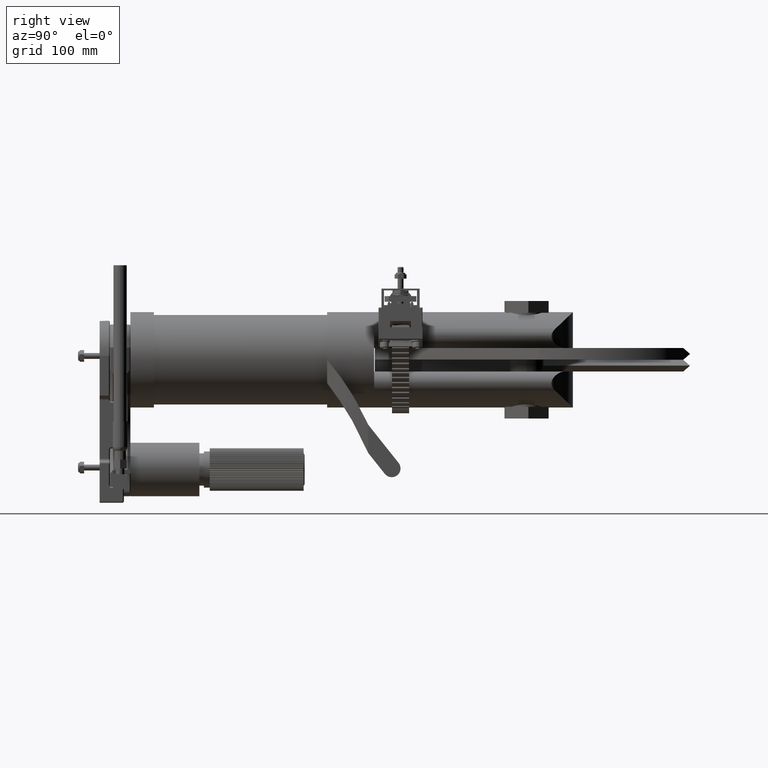
[diagram: clean part render]
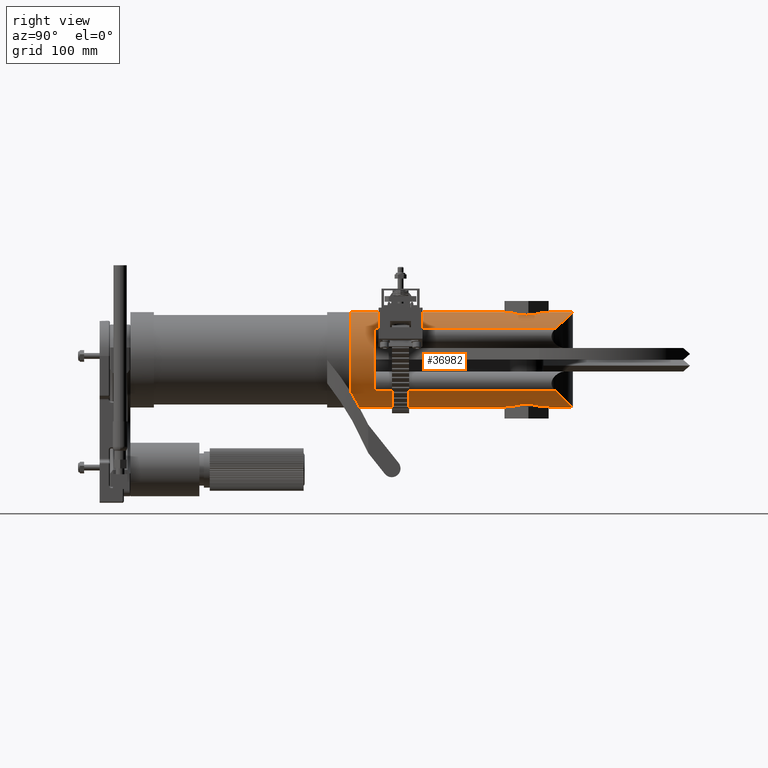
[diagram: same view with one face highlighted and labeled with its STEP entity id]
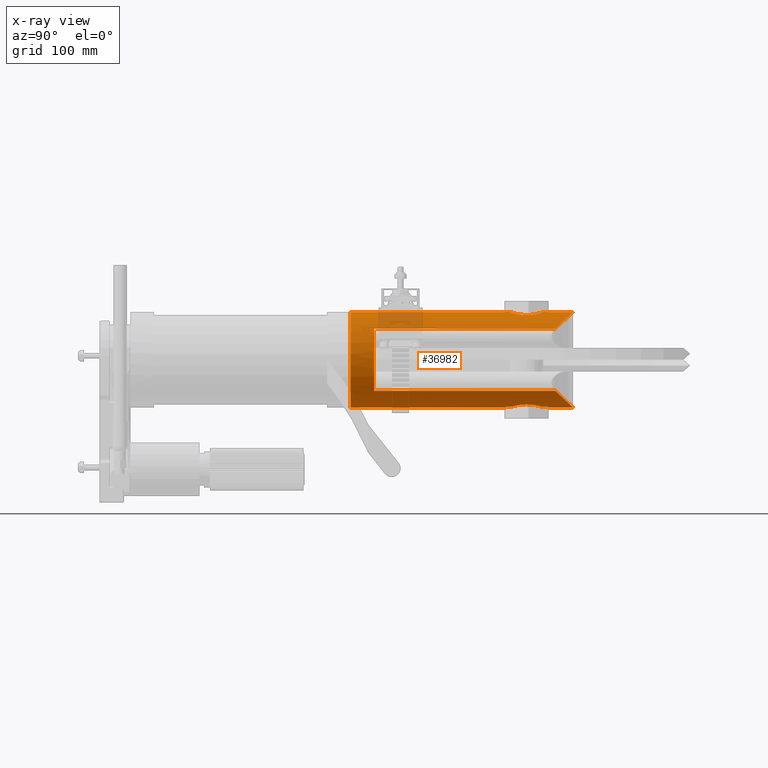
[diagram: x-ray of the same camera — body ghosted, the highlighted face saturated]
A machine part, right view. The second image highlights one B-rep face of the part: STEP entity #36982.
The next image is the same camera in x-ray: the body ghosted, the highlighted face saturated — about 8% of this face is hidden behind the body in this view.
In plain terms, the highlighted cylindrical surface (partial cylindrical patch) has radius 51.5938 mm, axis along (-0, -1, 0).
Its self-contained STEP definition (entity closure, byte-faithful):
#8277 =( BOUNDED_CURVE ( )  B_SPLINE_CURVE ( 3, ( #22376, #25103, #25104, #25105 ),
 .UNSPECIFIED., .F., .F. ) 
 B_SPLINE_CURVE_WITH_KNOTS ( ( 4, 4 ),
 ( 4.536751707814687500, 4.712388980384689700 ),
 .UNSPECIFIED. ) 
 CURVE ( )  GEOMETRIC_REPRESENTATION_ITEM ( )  RATIONAL_B_SPLINE_CURVE ( ( 1.000000000000000000, 0.9974309474124993800, 0.9974309474124993800, 1.000000000000000000 ) ) 
 REPRESENTATION_ITEM ( '' )  );
#8280 =( BOUNDED_CURVE ( )  B_SPLINE_CURVE ( 3, ( #22404, #25107, #25108, #25109 ),
 .UNSPECIFIED., .F., .T. ) 
 B_SPLINE_CURVE_WITH_KNOTS ( ( 4, 4 ),
 ( 1.570796326794896800, 1.746433599364898100 ),
 .UNSPECIFIED. ) 
 CURVE ( )  GEOMETRIC_REPRESENTATION_ITEM ( )  RATIONAL_B_SPLINE_CURVE ( ( 1.000000000000000000, 0.9974309474124993800, 0.9974309474124993800, 1.000000000000000000 ) ) 
 REPRESENTATION_ITEM ( '' )  );
#9951 = FACE_OUTER_BOUND ( 'NONE', #59903, .T. ) ;
#9960 = CYLINDRICAL_SURFACE ( 'NONE', #14162, 2.031250000000000000 ) ;
#14162 = AXIS2_PLACEMENT_3D ( 'NONE', #19466, #19465, #19458 ) ;
#14646 = AXIS2_PLACEMENT_3D ( 'NONE', #22350, #22373, #22374 ) ;
#14655 = AXIS2_PLACEMENT_3D ( 'NONE', #22322, #22348, #22349 ) ;
#15695 = B_SPLINE_CURVE_WITH_KNOTS ( 'NONE', 3,
 ( #22293, #22323, #22324, #22325, #22326, #22327, #22328, #22329, #22330, #22331, #22332, #22333, #22334, #22335, #22336, #22337, #22338, #22339, #22340, #22341, #22342, #22343, #22344, #22345 ),
 .UNSPECIFIED., .F., .F.,
 ( 4, 2, 2, 2, 2, 2, 2, 2, 2, 2, 2, 4 ),
 ( -0.04882047578979202600, -0.04271791631606803400, -0.03661535684234403600, -0.03051279736862004500, -0.02746151763175805000, -0.02441023789489605100, -0.01830767842117206000, -0.01525639868431003000, -0.01220511894744800300, -0.006102559473723914700, -0.003051279736861894900, 1.387778780781445700E-016 ),
 .UNSPECIFIED. ) ;
#15696 = B_SPLINE_CURVE_WITH_KNOTS ( 'NONE', 3,
 ( #22347, #22351, #22352, #22353, #22354, #22355, #22356, #22357, #22358, #22359, #22360, #22361, #22362, #22363, #22364, #22365, #22366, #22367, #22368, #22369, #22370, #22371 ),
 .UNSPECIFIED., .F., .F.,
 ( 4, 2, 2, 2, 2, 2, 2, 2, 2, 2, 4 ),
 ( 0.08930898898196625000, 0.09544698160097724000, 0.1015849742199882400, 0.1046539705294937700, 0.1077229668389992900, 0.1138609594580103100, 0.1169299557675158000, 0.1199989520770212800, 0.1261369446960322300, 0.1322749373150432000, 0.1384129299340541600 ),
 .UNSPECIFIED. ) ;
#15697 = B_SPLINE_CURVE_WITH_KNOTS ( 'NONE', 3,
 ( #22372, #22377, #22378, #22379, #22380, #22381, #22382, #22383, #22384, #22385, #22386, #22387, #22388, #22389, #22390, #22391, #22392, #22393, #22394, #22395, #22396, #22397, #22398, #22399, #22400, #22401, #22402, #22403 ),
 .UNSPECIFIED., .F., .F.,
 ( 4, 2, 2, 2, 2, 2, 2, 2, 2, 2, 2, 2, 2, 4 ),
 ( 0.02876765039164049300, 0.03056443622383342800, 0.03236122205602636600, 0.03595479372041223600, 0.03775157955260517000, 0.03954836538479810500, 0.04134515121699104000, 0.04314193704918397500, 0.04673550871356972600, 0.04853229454576259100, 0.05032908037795546400, 0.05392265204234114600, 0.05571943787453397000, 0.05751622370672679300 ),
 .UNSPECIFIED. ) ;
#15698 = B_SPLINE_CURVE_WITH_KNOTS ( 'NONE', 3,
 ( #22375, #22405, #22406, #22407, #22408, #22409, #22410, #22411, #22412, #25092, #25093, #25094, #25095, #25096, #25097, #25098, #25099, #25100 ),
 .UNSPECIFIED., .F., .F.,
 ( 4, 2, 2, 2, 2, 2, 2, 2, 4 ),
 ( 0.0000000000000000000, 0.004830445874811291200, 0.007245668812216858300, 0.009660891749622424500, 0.01086850321832527600, 0.01207611468702812900, 0.01449133762443383800, 0.01690656056183954500, 0.01932178349924525500 ),
 .UNSPECIFIED. ) ;
#15779 = B_SPLINE_CURVE_WITH_KNOTS ( 'NONE', 3,
 ( #27266, #27272, #27273, #27274, #27275, #27276, #27277, #27278, #27279, #27280, #27281, #27282, #27283, #27284, #27285, #27286, #27287, #27288, #27289, #27290, #27291, #27292, #27293, #27294 ),
 .UNSPECIFIED., .F., .F.,
 ( 4, 2, 2, 2, 2, 2, 2, 2, 2, 2, 2, 4 ),
 ( 1.718155261091193600E-017, 0.003595956298954937200, 0.005393934448432413100, 0.007191912597909890000, 0.01078786889686484500, 0.01258584704634236800, 0.01438382519581988700, 0.01797978149477504100, 0.02157573779373019400, 0.02337371594320777200, 0.02517169409268534700, 0.02876765039164049300 ),
 .UNSPECIFIED. ) ;
#15780 = B_SPLINE_CURVE_WITH_KNOTS ( 'NONE', 3,
 ( #27271, #27296, #27297, #27298, #27299, #27300, #27301, #27302, #27303, #27304, #27305, #27306, #27307, #27308, #27309, #27310, #27311, #27312, #27313, #27314, #27315, #27316 ),
 .UNSPECIFIED., .F., .F.,
 ( 4, 2, 2, 2, 2, 2, 2, 2, 2, 2, 4 ),
 ( 0.09568714846051695800, 0.09689511253324209500, 0.09810307660596723200, 0.1005190047514174000, 0.1017269688241424900, 0.1029349328968675700, 0.1053508610423178600, 0.1077667891877681600, 0.1089747532604934000, 0.1101827173332186200, 0.1150145736241195100 ),
 .UNSPECIFIED. ) ;
#19458 = DIRECTION ( 'NONE',  ( 0.0000000000000000000, 0.0000000000000000000, -1.000000000000000000 ) ) ;
#19465 = DIRECTION ( 'NONE',  ( -0.0000000000000000000, -1.000000000000000000, -0.0000000000000000000 ) ) ;
#19466 = CARTESIAN_POINT ( 'NONE',  ( 0.0000000000000000000, 10.25000000000000000, -2.156250000000000000 ) ) ;
#22257 = CARTESIAN_POINT ( 'NONE',  ( 0.0000000000000000000, 10.25000000000000000, -4.187500000000000000 ) ) ;
#22258 = DIRECTION ( 'NONE',  ( -0.0000000000000000000, -1.000000000000000000, -0.0000000000000000000 ) ) ;
#22288 = CARTESIAN_POINT ( 'NONE',  ( 0.0000000000000000000, 10.25000000000000000, -4.187500000000000000 ) ) ;
#22289 = DIRECTION ( 'NONE',  ( -0.0000000000000000000, -1.000000000000000000, -0.0000000000000000000 ) ) ;
#22293 = CARTESIAN_POINT ( 'NONE',  ( -1.538276014659651200, 18.97065110300615100, -0.8297193877551031200 ) ) ;
#22319 = CARTESIAN_POINT ( 'NONE',  ( -1.538276014659649900, 10.25000000000000000, -3.482780612244898300 ) ) ;
#22320 = DIRECTION ( 'NONE',  ( 0.0000000000000000000, 1.000000000000000000, 0.0000000000000000000 ) ) ;
#22321 = CARTESIAN_POINT ( 'NONE',  ( -1.538276014659650800, 10.25000000000000000, -0.8297193877551025700 ) ) ;
#22322 = CARTESIAN_POINT ( 'NONE',  ( 0.0000000000000000000, 11.24999999999999800, -2.156250000000000000 ) ) ;
#22323 = CARTESIAN_POINT ( 'NONE',  ( -1.497444702048972100, 19.02177037504725700, -0.7823704398632898000 ) ) ;
#22324 = CARTESIAN_POINT ( 'NONE',  ( -1.453873390420041400, 19.07111395246621300, -0.7362540163602913100 ) ) ;
#22325 = CARTESIAN_POINT ( 'NONE',  ( -1.360859027833986900, 19.16620037447367500, -0.6468795566405485300 ) ) ;
#22326 = CARTESIAN_POINT ( 'NONE',  ( -1.311418919253014100, 19.21194350839218100, -0.6036184797552164300 ) ) ;
#22327 = CARTESIAN_POINT ( 'NONE',  ( -1.206030054655290500, 19.29957435763830600, -0.5204090154600821100 ) ) ;
#22328 = CARTESIAN_POINT ( 'NONE',  ( -1.150087230463019200, 19.34146471787116200, -0.4804566866200446500 ) ) ;
#22329 = CARTESIAN_POINT ( 'NONE',  ( -1.060533299230782100, 19.40103469959537100, -0.4234783734408503200 ) ) ;
#22330 = CARTESIAN_POINT ( 'NONE',  ( -1.029937827352214000, 19.42020810350105000, -0.4051098258035474300 ) ) ;
#22331 = CARTESIAN_POINT ( 'NONE',  ( -0.9674527544473575700, 19.45698878808968100, -0.3698292752523268900 ) ) ;
#22332 = CARTESIAN_POINT ( 'NONE',  ( -0.9355250803138655000, 19.47462165943938900, -0.3528927677386527500 ) ) ;
#22333 = CARTESIAN_POINT ( 'NONE',  ( -0.8375965815526544800, 19.52516036782106600, -0.3042996196567278000 ) ) ;
#22334 = CARTESIAN_POINT ( 'NONE',  ( -0.7694621773201306700, 19.55571962114525400, -0.2748473092282149900 ) ) ;
#22335 = CARTESIAN_POINT ( 'NONE',  ( -0.6624477864033225800, 19.59630421974068100, -0.2356817549337838800 ) ) ;
#22336 = CARTESIAN_POINT ( 'NONE',  ( -0.6259042274104563700, 19.60897457380625400, -0.2234445549141554900 ) ) ;
#22337 = CARTESIAN_POINT ( 'NONE',  ( -0.5513634494164100200, 19.63232976176508200, -0.2008750136888301500 ) ) ;
#22338 = CARTESIAN_POINT ( 'NONE',  ( -0.5137002262745568000, 19.64291360254486200, -0.1906403293109739100 ) ) ;
#22339 = CARTESIAN_POINT ( 'NONE',  ( -0.3995150183001299800, 19.67134221103090000, -0.1631380456493027000 ) ) ;
#22340 = CARTESIAN_POINT ( 'NONE',  ( -0.3218025351764976500, 19.68587841476081100, -0.1490590697408266700 ) ) ;
#22341 = CARTESIAN_POINT ( 'NONE',  ( -0.2026997216843171900, 19.70065527986695700, -0.1347435517678214300 ) ) ;
#22342 = CARTESIAN_POINT ( 'NONE',  ( -0.1625752530419638500, 19.70440628369774300, -0.1311086104383400500 ) ) ;
#22343 = CARTESIAN_POINT ( 'NONE',  ( -0.08143737475467563400, 19.70944419982858500, -0.1262262773281549700 ) ) ;
#22344 = CARTESIAN_POINT ( 'NONE',  ( -0.04074235854515347000, 19.71070933318639700, -0.1250000000000001700 ) ) ;
#22345 = CARTESIAN_POINT ( 'NONE',  ( 2.487563810768060700E-016, 19.71070933318639000, -0.1249999999999999000 ) ) ;
#22346 = DIRECTION ( 'NONE',  ( -0.0000000000000000000, -1.000000000000000000, -0.0000000000000000000 ) ) ;
#22347 = CARTESIAN_POINT ( 'NONE',  ( 0.0000000000000000000, 19.71070933318639000, -4.187500000000000000 ) ) ;
#22348 = DIRECTION ( 'NONE',  ( 0.0000000000000000000, 1.000000000000000000, 0.0000000000000000000 ) ) ;
#22349 = DIRECTION ( 'NONE',  ( 8.881784197001252300E-016, 0.0000000000000000000, -1.000000000000000000 ) ) ;
#22350 = CARTESIAN_POINT ( 'NONE',  ( 0.0000000000000000000, 10.25000000000000000, -2.156250000000000000 ) ) ;
#22351 = CARTESIAN_POINT ( 'NONE',  ( -0.08152241056359951800, 19.71070933318639700, -4.187500000000001800 ) ) ;
#22352 = CARTESIAN_POINT ( 'NONE',  ( -0.1617269734057844000, 19.70566842587297900, -4.182613142033256200 ) ) ;
#22353 = CARTESIAN_POINT ( 'NONE',  ( -0.3196863607864583500, 19.68620974024667400, -4.163761850038498300 ) ) ;
#22354 = CARTESIAN_POINT ( 'NONE',  ( -0.3974402451221549200, 19.67178841805321500, -4.149793875317686600 ) ) ;
#22355 = CARTESIAN_POINT ( 'NONE',  ( -0.5122836836487790800, 19.64330033643972900, -4.122233680541905100 ) ) ;
#22356 = CARTESIAN_POINT ( 'NONE',  ( -0.5503304269888842400, 19.63262711957173000, -4.111912491121815400 ) ) ;
#22357 = CARTESIAN_POINT ( 'NONE',  ( -0.6245491791895090300, 19.60942461535864800, -4.089490202567767500 ) ) ;
#22358 = CARTESIAN_POINT ( 'NONE',  ( -0.6608869769176549700, 19.59685955225032600, -4.077354464239386200 ) ) ;
#22359 = CARTESIAN_POINT ( 'NONE',  ( -0.7677305142193462400, 19.55644709721448700, -4.038354143015451900 ) ) ;
#22360 = CARTESIAN_POINT ( 'NONE',  ( -0.8360748700193427800, 19.52589351301930900, -4.008906097007224100 ) ) ;
#22361 = CARTESIAN_POINT ( 'NONE',  ( -0.9346533880204884700, 19.47509696554578100, -3.960063853104248500 ) ) ;
#22362 = CARTESIAN_POINT ( 'NONE',  ( -0.9669431231923825100, 19.45728078871760400, -3.942950973245809900 ) ) ;
#22363 = CARTESIAN_POINT ( 'NONE',  ( -1.029810455163829200, 19.42029098269135200, -3.907469517285550300 ) ) ;
#22364 = CARTESIAN_POINT ( 'NONE',  ( -1.060300092936520700, 19.40117756742125400, -3.889158584585590700 ) ) ;
#22365 = CARTESIAN_POINT ( 'NONE',  ( -1.149153347761415800, 19.34211015089804100, -3.832660061493077000 ) ) ;
#22366 = CARTESIAN_POINT ( 'NONE',  ( -1.204912320221722900, 19.30043695123991700, -3.792912601248467700 ) ) ;
#22367 = CARTESIAN_POINT ( 'NONE',  ( -1.310289015084239500, 19.21294841620007800, -3.709833234557153000 ) ) ;
#22368 = CARTESIAN_POINT ( 'NONE',  ( -1.359902457545063300, 19.16713108968999200, -3.666497885636348800 ) ) ;
#22369 = CARTESIAN_POINT ( 'NONE',  ( -1.453481502566407400, 19.07156105974587500, -3.576663634052935900 ) ) ;
#22370 = CARTESIAN_POINT ( 'NONE',  ( -1.497566853460609700, 19.02161744606107900, -3.529987910494444000 ) ) ;
#22371 = CARTESIAN_POINT ( 'NONE',  ( -1.538276014659649700, 18.97065110300615500, -3.482780612244898800 ) ) ;
#22372 = CARTESIAN_POINT ( 'NONE',  ( -0.7183672316015292700, 17.74195933318638700, -4.056230284913807400 ) ) ;
#22373 = DIRECTION ( 'NONE',  ( -0.0000000000000000000, -1.000000000000000000, -0.0000000000000000000 ) ) ;
#22374 = DIRECTION ( 'NONE',  ( 0.0000000000000000000, 0.0000000000000000000, -1.000000000000000000 ) ) ;
#22375 = CARTESIAN_POINT ( 'NONE',  ( -0.7183672316015292700, 17.74195933318638700, -0.2562697150861919500 ) ) ;
#22376 = CARTESIAN_POINT ( 'NONE',  ( -0.3549317716125175400, 16.86291926993516600, -0.1562500000000000800 ) ) ;
#22377 = CARTESIAN_POINT ( 'NONE',  ( -0.7183672316015293800, 17.71831907268666800, -4.056230284913807400 ) ) ;
#22378 = CARTESIAN_POINT ( 'NONE',  ( -0.7171946862238720600, 17.69449113415445800, -4.056674883937389200 ) ) ;
#22379 = CARTESIAN_POINT ( 'NONE',  ( -0.7124605717285440500, 17.64697837930967900, -4.058454744807568700 ) ) ;
#22380 = CARTESIAN_POINT ( 'NONE',  ( -0.7089336571212897500, 17.62355257311186900, -4.059776763880766000 ) ) ;
#22381 = CARTESIAN_POINT ( 'NONE',  ( -0.6950031551482858100, 17.55422404044622200, -4.064926298085384600 ) ) ;
#22382 = CARTESIAN_POINT ( 'NONE',  ( -0.6812829435444088800, 17.50926193866742200, -4.069938013334672500 ) ) ;
#22383 = CARTESIAN_POINT ( 'NONE',  ( -0.6539478460922334400, 17.44369023352037500, -4.079378103339104600 ) ) ;
#22384 = CARTESIAN_POINT ( 'NONE',  ( -0.6437940758207301200, 17.42238453192699800, -4.082812142881397000 ) ) ;
#22385 = CARTESIAN_POINT ( 'NONE',  ( -0.6216355377192278600, 17.38117113506126200, -4.090075680016208400 ) ) ;
#22386 = CARTESIAN_POINT ( 'NONE',  ( -0.6096064444560701500, 17.36120505758053100, -4.093913713732007400 ) ) ;
#22387 = CARTESIAN_POINT ( 'NONE',  ( -0.5836652228290629700, 17.32252072841280800, -4.101885010040677800 ) ) ;
#22388 = CARTESIAN_POINT ( 'NONE',  ( -0.5697531414350902600, 17.30380248383672600, -4.106018460993081700 ) ) ;
#22389 = CARTESIAN_POINT ( 'NONE',  ( -0.5400017251125375200, 17.26761957764964000, -4.114467002922293800 ) ) ;
#22390 = CARTESIAN_POINT ( 'NONE',  ( -0.5241397810906711600, 17.25015324883018400, -4.118785269661800400 ) ) ;
#22391 = CARTESIAN_POINT ( 'NONE',  ( -0.4746188196911956800, 17.20069647966267800, -4.131566700594642100 ) ) ;
#22392 = CARTESIAN_POINT ( 'NONE',  ( -0.4387458926702950700, 17.17122707208867600, -4.139944746214892400 ) ) ;
#22393 = CARTESIAN_POINT ( 'NONE',  ( -0.3805443091693986300, 17.13221926037985900, -4.151633209250215700 ) ) ;
#22394 = CARTESIAN_POINT ( 'NONE',  ( -0.3603094190412163300, 17.12003898145993800, -4.155399357369213400 ) ) ;
#22395 = CARTESIAN_POINT ( 'NONE',  ( -0.3187377959947160800, 17.09774351628509900, -4.162447210626112300 ) ) ;
#22396 = CARTESIAN_POINT ( 'NONE',  ( -0.2975370596392878400, 17.08768797446678900, -4.165708645767694000 ) ) ;
#22397 = CARTESIAN_POINT ( 'NONE',  ( -0.2327058994520001000, 17.06071724931162900, -4.174597760049675100 ) ) ;
#22398 = CARTESIAN_POINT ( 'NONE',  ( -0.1878584264595888300, 17.04696509593949100, -4.179333127481436700 ) ) ;
#22399 = CARTESIAN_POINT ( 'NONE',  ( -0.1179992898850668300, 17.03295177207344600, -4.184204048230533600 ) ) ;
#22400 = CARTESIAN_POINT ( 'NONE',  ( -0.09428568779913491800, 17.02941272126946300, -4.185447623505360100 ) ) ;
#22401 = CARTESIAN_POINT ( 'NONE',  ( -0.04714549183066531900, 17.02474962349327100, -4.187089749651263100 ) ) ;
#22402 = CARTESIAN_POINT ( 'NONE',  ( -0.02357362106851695200, 17.02359210158485700, -4.187500000000000900 ) ) ;
#22403 = CARTESIAN_POINT ( 'NONE',  ( -3.961038017548696400E-019, 17.02359210158485700, -4.187500000000000000 ) ) ;
#22404 = CARTESIAN_POINT ( 'NONE',  ( 2.487563810768061100E-016, 18.64764047767272700, -0.1249999999999999000 ) ) ;
#22405 = CARTESIAN_POINT ( 'NONE',  ( -0.7183672316015292700, 17.80630879087581800, -0.2562697150861923400 ) ) ;
#22406 = CARTESIAN_POINT ( 'NONE',  ( -0.7098760358352547200, 17.86907069713219100, -0.2529985209188791400 ) ) ;
#22407 = CARTESIAN_POINT ( 'NONE',  ( -0.6849070813881927800, 17.96095983710767600, -0.2439327521410784000 ) ) ;
#22408 = CARTESIAN_POINT ( 'NONE',  ( -0.6744361335400919100, 17.99132735813305600, -0.2401915178086403700 ) ) ;
#22409 = CARTESIAN_POINT ( 'NONE',  ( -0.6499554440983866800, 18.04954091712336300, -0.2317495125776573000 ) ) ;
#22410 = CARTESIAN_POINT ( 'NONE',  ( -0.6359046012376624600, 18.07760804764949800, -0.2270329754931579300 ) ) ;
#22411 = CARTESIAN_POINT ( 'NONE',  ( -0.6121558785524362500, 18.11820721727588100, -0.2194198965553893500 ) ) ;
#22412 = CARTESIAN_POINT ( 'NONE',  ( -0.6037926190451026200, 18.13148914315029000, -0.2167923287012313300 ) ) ;
#23882 = VECTOR ( 'NONE', #22346, 39.37007874015748100 ) ;
#23889 = LINE ( 'NONE', #22257, #23891 ) ;
#23891 = VECTOR ( 'NONE', #22258, 39.37007874015748100 ) ;
#23897 = LINE ( 'NONE', #22288, #23900 ) ;
#23900 = VECTOR ( 'NONE', #22289, 39.37007874015748100 ) ;
#23905 = VECTOR ( 'NONE', #25110, 39.37007874015748100 ) ;
#23910 = LINE ( 'NONE', #22319, #23912 ) ;
#23912 = VECTOR ( 'NONE', #22320, 39.37007874015748100 ) ;
#23914 = LINE ( 'NONE', #25106, #23905 ) ;
#23916 = LINE ( 'NONE', #22321, #23882 ) ;
#23921 = VECTOR ( 'NONE', #25115, 39.37007874015748100 ) ;
#23923 = CIRCLE ( 'NONE', #14655, 2.031250000000000000 ) ;
#23926 = CIRCLE ( 'NONE', #14646, 2.031250000000000000 ) ;
#23935 = LINE ( 'NONE', #25102, #23921 ) ;
#24941 = LINE ( 'NONE', #27375, #24944 ) ;
#24944 = VECTOR ( 'NONE', #27376, 39.37007874015748100 ) ;
#24945 = LINE ( 'NONE', #27410, #24948 ) ;
#24948 = VECTOR ( 'NONE', #27411, 39.37007874015748100 ) ;
#25092 = CARTESIAN_POINT ( 'NONE',  ( -0.5861598833950783000, 18.15754998606747300, -0.2113905766299572200 ) ) ;
#25093 = CARTESIAN_POINT ( 'NONE',  ( -0.5768590795918564500, 18.17036834996696400, -0.2086073317525872800 ) ) ;
#25094 = CARTESIAN_POINT ( 'NONE',  ( -0.5477944130213302500, 18.20775926471485600, -0.2001556676365332500 ) ) ;
#25095 = CARTESIAN_POINT ( 'NONE',  ( -0.5269882554678770900, 18.23115123378091000, -0.1944178477924327900 ) ) ;
#25096 = CARTESIAN_POINT ( 'NONE',  ( -0.4825809573290261200, 18.27500807076275900, -0.1830248140519155600 ) ) ;
#25097 = CARTESIAN_POINT ( 'NONE',  ( -0.4589797244678562300, 18.29547258237494800, -0.1773686080472716700 ) ) ;
#25098 = CARTESIAN_POINT ( 'NONE',  ( -0.4088843280510307000, 18.33344298534773000, -0.1664139371135083800 ) ) ;
#25099 = CARTESIAN_POINT ( 'NONE',  ( -0.3822703695896018100, 18.35098282943164300, -0.1611016685067046000 ) ) ;
#25100 = CARTESIAN_POINT ( 'NONE',  ( -0.3549317716125175400, 18.36651911170150000, -0.1562500000000001400 ) ) ;
#25102 = CARTESIAN_POINT ( 'NONE',  ( -0.3549317716125175400, 10.25000000000000000, -0.1562500000000000000 ) ) ;
#25103 = CARTESIAN_POINT ( 'NONE',  ( -0.2376895008124179100, 16.85411909730935400, -0.1354434965585229500 ) ) ;
#25104 = CARTESIAN_POINT ( 'NONE',  ( -0.1190741812813531600, 16.84521586402313500, -0.1249999999999999200 ) ) ;
#25105 = CARTESIAN_POINT ( 'NONE',  ( 2.487563810768061100E-016, 16.83627818870004600, -0.1249999999999999000 ) ) ;
#25106 = CARTESIAN_POINT ( 'NONE',  ( -0.3549317716125175400, 10.25000000000000000, -0.1562500000000000000 ) ) ;
#25107 = CARTESIAN_POINT ( 'NONE',  ( -0.1190741812813525100, 18.65657815299582000, -0.1249999999999999200 ) ) ;
#25108 = CARTESIAN_POINT ( 'NONE',  ( -0.2376895008124166900, 18.66548138628203500, -0.1354434965585228900 ) ) ;
#25109 = CARTESIAN_POINT ( 'NONE',  ( -0.3549317716125174900, 18.67428155890785000, -0.1562500000000000800 ) ) ;
#25110 = DIRECTION ( 'NONE',  ( 0.0000000000000000000, 1.000000000000000000, 0.0000000000000000000 ) ) ;
#25115 = DIRECTION ( 'NONE',  ( 0.0000000000000000000, 1.000000000000000000, 0.0000000000000000000 ) ) ;
#27266 = CARTESIAN_POINT ( 'NONE',  ( -6.968576320606263500E-016, 18.46032656478792000, -4.187500000000000000 ) ) ;
#27271 = CARTESIAN_POINT ( 'NONE',  ( -0.3549317716125175400, 17.11739955467127700, -0.1562500000000001400 ) ) ;
#27272 = CARTESIAN_POINT ( 'NONE',  ( -0.04789797130060635000, 18.46032656478792300, -4.187500000000001800 ) ) ;
#27273 = CARTESIAN_POINT ( 'NONE',  ( -0.09492132980028966700, 18.45558466414027900, -4.185809284629312900 ) ) ;
#27274 = CARTESIAN_POINT ( 'NONE',  ( -0.1642147761047550400, 18.44170207866183000, -4.180983603799000500 ) ) ;
#27275 = CARTESIAN_POINT ( 'NONE',  ( -0.1871041913648734100, 18.43593754198722900, -4.178992799624799300 ) ) ;
#27276 = CARTESIAN_POINT ( 'NONE',  ( -0.2324607573025852500, 18.42208853343516100, -4.174283302047957300 ) ) ;
#27277 = CARTESIAN_POINT ( 'NONE',  ( -0.2548891448000443800, 18.41399859063512100, -4.171563537902027700 ) ) ;
#27278 = CARTESIAN_POINT ( 'NONE',  ( -0.3200422171687703500, 18.38681551844765500, -4.162607849557765000 ) ) ;
#27279 = CARTESIAN_POINT ( 'NONE',  ( -0.3611772022876524300, 18.36469326043126700, -4.155525587271367400 ) ) ;
#27280 = CARTESIAN_POINT ( 'NONE',  ( -0.4195456707793046600, 18.32555308624413100, -4.143799197713921200 ) ) ;
#27281 = CARTESIAN_POINT ( 'NONE',  ( -0.4385283080017390300, 18.31142660798947800, -4.139684855993172300 ) ) ;
#27282 = CARTESIAN_POINT ( 'NONE',  ( -0.4746913933689782500, 18.28165196334910500, -4.131342146191904000 ) ) ;
#27283 = CARTESIAN_POINT ( 'NONE',  ( -0.4919271803387554900, 18.26598129519585400, -4.127105590468331400 ) ) ;
#27284 = CARTESIAN_POINT ( 'NONE',  ( -0.5411799603356897100, 18.21665426881523300, -4.114374357638274300 ) ) ;
#27285 = CARTESIAN_POINT ( 'NONE',  ( -0.5707836270097999000, 18.18068683798171400, -4.105848853906890000 ) ) ;
#27286 = CARTESIAN_POINT ( 'NONE',  ( -0.6232439879853713900, 18.10229626408090600, -4.089717499457284700 ) ) ;
#27287 = CARTESIAN_POINT ( 'NONE',  ( -0.6452697999411101100, 18.06111991288612000, -4.082376812685006400 ) ) ;
#27288 = CARTESIAN_POINT ( 'NONE',  ( -0.6722096850784040600, 17.99638397124941800, -4.073070535281493300 ) ) ;
#27289 = CARTESIAN_POINT ( 'NONE',  ( -0.6801651036265187200, 17.97430649702694800, -4.070252544130479300 ) ) ;
#27290 = CARTESIAN_POINT ( 'NONE',  ( -0.6939630242584171600, 17.92910925623776200, -4.065293118447388400 ) ) ;
#27291 = CARTESIAN_POINT ( 'NONE',  ( -0.6998175912349312600, 17.90587490267781900, -4.063147055101621800 ) ) ;
#27292 = CARTESIAN_POINT ( 'NONE',  ( -0.7137387550894481700, 17.83616363702161000, -4.057999578943492800 ) ) ;
#27293 = CARTESIAN_POINT ( 'NONE',  ( -0.7183672316015293800, 17.78927122875557400, -4.056230284913809200 ) ) ;
#27294 = CARTESIAN_POINT ( 'NONE',  ( -0.7183672316015292700, 17.74195933318638700, -4.056230284913807400 ) ) ;
#27296 = CARTESIAN_POINT ( 'NONE',  ( -0.3686764673784144200, 17.12521054312472300, -0.1586892146092326300 ) ) ;
#27297 = CARTESIAN_POINT ( 'NONE',  ( -0.3822501624637277300, 17.13353010430649400, -0.1612456484269911000 ) ) ;
#27298 = CARTESIAN_POINT ( 'NONE',  ( -0.4086416354995681700, 17.15093198441548200, -0.1664837918149715300 ) ) ;
#27299 = CARTESIAN_POINT ( 'NONE',  ( -0.4214809837440873800, 17.16002199731091700, -0.1691682438772295600 ) ) ;
#27300 = CARTESIAN_POINT ( 'NONE',  ( -0.4589625830129690500, 17.18843603715233600, -0.1773654251474367200 ) ) ;
#27301 = CARTESIAN_POINT ( 'NONE',  ( -0.4825730948819806900, 17.20889863240772000, -0.1830222085149280900 ) ) ;
#27302 = CARTESIAN_POINT ( 'NONE',  ( -0.5159636303635517500, 17.24188157185735500, -0.1915896906168943200 ) ) ;
#27303 = CARTESIAN_POINT ( 'NONE',  ( -0.5267550813129209300, 17.25325875176842800, -0.1944592274085067700 ) ) ;
#27304 = CARTESIAN_POINT ( 'NONE',  ( -0.5476527332404097500, 17.27679736382351200, -0.2001900737992665900 ) ) ;
#27305 = CARTESIAN_POINT ( 'NONE',  ( -0.5577902674988120000, 17.28900235251130400, -0.2030608279659499000 ) ) ;
#27306 = CARTESIAN_POINT ( 'NONE',  ( -0.5867912984566454600, 17.32636148769897100, -0.2114986067300579100 ) ) ;
#27307 = CARTESIAN_POINT ( 'NONE',  ( -0.6043309621837469300, 17.35232493081511900, -0.2169109742397442300 ) ) ;
#27308 = CARTESIAN_POINT ( 'NONE',  ( -0.6359256305436371500, 17.40635618692159900, -0.2270402236645313300 ) ) ;
#27309 = CARTESIAN_POINT ( 'NONE',  ( -0.6499806746550551600, 17.43442383862638000, -0.2317578742611589300 ) ) ;
#27310 = CARTESIAN_POINT ( 'NONE',  ( -0.6683746300948494300, 17.47818442368108200, -0.2381014185328254300 ) ) ;
#27311 = CARTESIAN_POINT ( 'NONE',  ( -0.6740738958664174200, 17.49310161122049900, -0.2400998836363071300 ) ) ;
#27312 = CARTESIAN_POINT ( 'NONE',  ( -0.6844531195864491700, 17.52325928755547600, -0.2437827943680965200 ) ) ;
#27313 = CARTESIAN_POINT ( 'NONE',  ( -0.6891169331859781100, 17.53844012015545300, -0.2454611835370655300 ) ) ;
#27314 = CARTESIAN_POINT ( 'NONE',  ( -0.7098632301845858600, 17.61484723434738300, -0.2529942272496809600 ) ) ;
#27315 = CARTESIAN_POINT ( 'NONE',  ( -0.7183672316015293800, 17.67759108644253300, -0.2562697150861923400 ) ) ;
#27316 = CARTESIAN_POINT ( 'NONE',  ( -0.7183672316015292700, 17.74195933318638700, -0.2562697150861919500 ) ) ;
#27375 = CARTESIAN_POINT ( 'NONE',  ( 2.487563810768061100E-016, 10.25000000000000000, -0.1249999999999999000 ) ) ;
#27376 = DIRECTION ( 'NONE',  ( -0.0000000000000000000, -1.000000000000000000, -0.0000000000000000000 ) ) ;
#27410 = CARTESIAN_POINT ( 'NONE',  ( 2.487563810768061100E-016, 10.25000000000000000, -0.1249999999999999000 ) ) ;
#27411 = DIRECTION ( 'NONE',  ( -0.0000000000000000000, -1.000000000000000000, -0.0000000000000000000 ) ) ;
#29653 = CARTESIAN_POINT ( 'NONE',  ( -6.968576320606263500E-016, 18.46032656478792000, -4.187500000000000000 ) ) ;
#29656 = CARTESIAN_POINT ( 'NONE',  ( -0.7183672316015292700, 17.74195933318638700, -4.056230284913807400 ) ) ;
#29661 = CARTESIAN_POINT ( 'NONE',  ( -0.3549317716125175400, 17.11739955467127700, -0.1562500000000001400 ) ) ;
#29663 = CARTESIAN_POINT ( 'NONE',  ( -0.7183672316015292700, 17.74195933318638700, -0.2562697150861919500 ) ) ;
#29664 = CARTESIAN_POINT ( 'NONE',  ( 2.487563810768060700E-016, 19.71070933318639000, -0.1249999999999999000 ) ) ;
#29666 = CARTESIAN_POINT ( 'NONE',  ( 2.487563810768061100E-016, 18.64764047767272700, -0.1249999999999999000 ) ) ;
#29671 = CARTESIAN_POINT ( 'NONE',  ( 2.487563810768061100E-016, 16.83627818870004600, -0.1249999999999999000 ) ) ;
#29672 = CARTESIAN_POINT ( 'NONE',  ( 2.487563810768061100E-016, 10.25000000000000000, -0.1249999999999999000 ) ) ;
#29673 = CARTESIAN_POINT ( 'NONE',  ( 0.0000000000000000000, 10.25000000000000000, -4.187500000000000000 ) ) ;
#29674 = CARTESIAN_POINT ( 'NONE',  ( -3.961038017548696400E-019, 17.02359210158485700, -4.187500000000000000 ) ) ;
#29675 = CARTESIAN_POINT ( 'NONE',  ( 0.0000000000000000000, 19.71070933318639000, -4.187500000000000000 ) ) ;
#29679 = CARTESIAN_POINT ( 'NONE',  ( -1.538276014659651200, 18.97065110300615100, -0.8297193877551031200 ) ) ;
#29680 = CARTESIAN_POINT ( 'NONE',  ( -1.538276014659651000, 11.24999999999999800, -0.8297193877551023400 ) ) ;
#29681 = CARTESIAN_POINT ( 'NONE',  ( -1.538276014659649900, 11.24999999999999800, -3.482780612244898300 ) ) ;
#29682 = CARTESIAN_POINT ( 'NONE',  ( -1.538276014659649700, 18.97065110300615500, -3.482780612244898800 ) ) ;
#29683 = CARTESIAN_POINT ( 'NONE',  ( -0.3549317716125175400, 16.86291926993516600, -0.1562500000000000800 ) ) ;
#29684 = CARTESIAN_POINT ( 'NONE',  ( -0.3549317716125175400, 18.36651911170150000, -0.1562500000000001400 ) ) ;
#29685 = CARTESIAN_POINT ( 'NONE',  ( -0.3549317716125174900, 18.67428155890785000, -0.1562500000000000800 ) ) ;
#36982 = ADVANCED_FACE ( 'NONE', ( #9951 ), #9960, .T. ) ;
#37511 = EDGE_CURVE ( 'NONE', #38953, #38952, #23889, .T. ) ;
#37514 = EDGE_CURVE ( 'NONE', #38954, #38932, #23897, .T. ) ;
#37518 = EDGE_CURVE ( 'NONE', #38960, #38961, #23910, .T. ) ;
#37519 = EDGE_CURVE ( 'NONE', #38958, #38943, #15695, .T. ) ;
#37520 = EDGE_CURVE ( 'NONE', #38958, #38959, #23916, .T. ) ;
#37521 = EDGE_CURVE ( 'NONE', #38960, #38959, #23923, .T. ) ;
#37522 = EDGE_CURVE ( 'NONE', #38954, #38961, #15696, .T. ) ;
#37523 = EDGE_CURVE ( 'NONE', #38951, #38952, #23926, .T. ) ;
#37524 = EDGE_CURVE ( 'NONE', #38935, #38953, #15697, .T. ) ;
#37525 = EDGE_CURVE ( 'NONE', #38942, #38963, #15698, .T. ) ;
#37526 = EDGE_CURVE ( 'NONE', #38962, #38950, #8277, .T. ) ;
#37527 = EDGE_CURVE ( 'NONE', #38945, #38964, #8280, .T. ) ;
#37528 = EDGE_CURVE ( 'NONE', #38962, #38940, #23914, .T. ) ;
#37530 = EDGE_CURVE ( 'NONE', #38963, #38964, #23935, .T. ) ;
#38080 = EDGE_CURVE ( 'NONE', #38932, #38935, #15779, .T. ) ;
#38081 = EDGE_CURVE ( 'NONE', #38940, #38942, #15780, .T. ) ;
#38090 = EDGE_CURVE ( 'NONE', #38943, #38945, #24941, .T. ) ;
#38094 = EDGE_CURVE ( 'NONE', #38950, #38951, #24945, .T. ) ;
#38932 = VERTEX_POINT ( 'NONE', #29653 ) ;
#38935 = VERTEX_POINT ( 'NONE', #29656 ) ;
#38940 = VERTEX_POINT ( 'NONE', #29661 ) ;
#38942 = VERTEX_POINT ( 'NONE', #29663 ) ;
#38943 = VERTEX_POINT ( 'NONE', #29664 ) ;
#38945 = VERTEX_POINT ( 'NONE', #29666 ) ;
#38950 = VERTEX_POINT ( 'NONE', #29671 ) ;
#38951 = VERTEX_POINT ( 'NONE', #29672 ) ;
#38952 = VERTEX_POINT ( 'NONE', #29673 ) ;
#38953 = VERTEX_POINT ( 'NONE', #29674 ) ;
#38954 = VERTEX_POINT ( 'NONE', #29675 ) ;
#38958 = VERTEX_POINT ( 'NONE', #29679 ) ;
#38959 = VERTEX_POINT ( 'NONE', #29680 ) ;
#38960 = VERTEX_POINT ( 'NONE', #29681 ) ;
#38961 = VERTEX_POINT ( 'NONE', #29682 ) ;
#38962 = VERTEX_POINT ( 'NONE', #29683 ) ;
#38963 = VERTEX_POINT ( 'NONE', #29684 ) ;
#38964 = VERTEX_POINT ( 'NONE', #29685 ) ;
#47669 = ORIENTED_EDGE ( 'NONE', *, *, #38090, .F. ) ;
#47670 = ORIENTED_EDGE ( 'NONE', *, *, #37519, .F. ) ;
#47671 = ORIENTED_EDGE ( 'NONE', *, *, #37520, .T. ) ;
#47672 = ORIENTED_EDGE ( 'NONE', *, *, #37521, .F. ) ;
#47673 = ORIENTED_EDGE ( 'NONE', *, *, #37518, .T. ) ;
#47674 = ORIENTED_EDGE ( 'NONE', *, *, #37522, .F. ) ;
#47675 = ORIENTED_EDGE ( 'NONE', *, *, #37514, .T. ) ;
#47676 = ORIENTED_EDGE ( 'NONE', *, *, #38080, .T. ) ;
#47677 = ORIENTED_EDGE ( 'NONE', *, *, #37524, .T. ) ;
#47678 = ORIENTED_EDGE ( 'NONE', *, *, #37511, .T. ) ;
#47679 = ORIENTED_EDGE ( 'NONE', *, *, #37523, .F. ) ;
#47680 = ORIENTED_EDGE ( 'NONE', *, *, #38094, .F. ) ;
#47681 = ORIENTED_EDGE ( 'NONE', *, *, #37526, .F. ) ;
#47682 = ORIENTED_EDGE ( 'NONE', *, *, #37528, .T. ) ;
#47683 = ORIENTED_EDGE ( 'NONE', *, *, #38081, .T. ) ;
#47684 = ORIENTED_EDGE ( 'NONE', *, *, #37525, .T. ) ;
#47685 = ORIENTED_EDGE ( 'NONE', *, *, #37530, .T. ) ;
#47686 = ORIENTED_EDGE ( 'NONE', *, *, #37527, .F. ) ;
#59903 = EDGE_LOOP ( 'NONE', ( #47669, #47670, #47671, #47672, #47673, #47674, #47675, #47676, #47677, #47678, #47679, #47680, #47681, #47682, #47683, #47684, #47685, #47686 ) ) ;